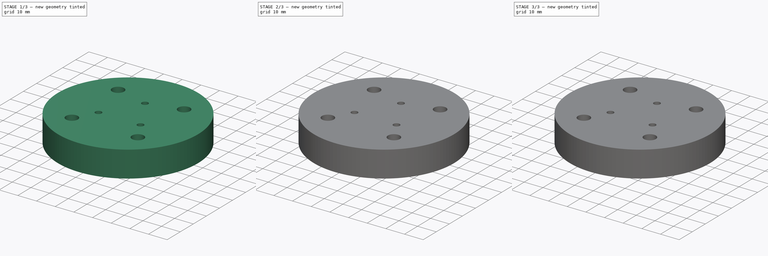
[diagram: build sequence overview — one tinted view per stage of 3, left to right]
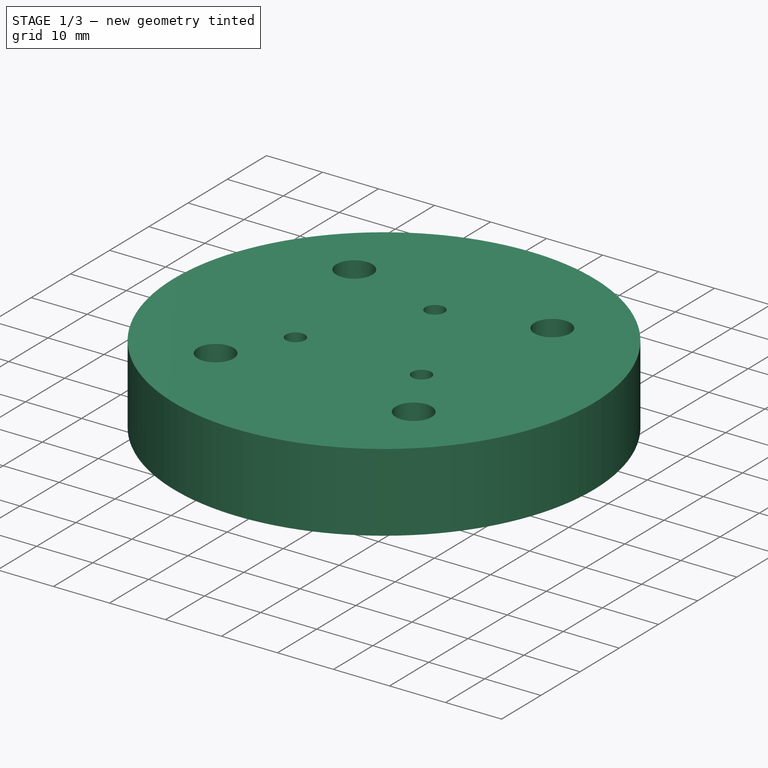
[diagram: stage 1 of 3 — iso view after this stage's code; geometry added in this stage tinted green]
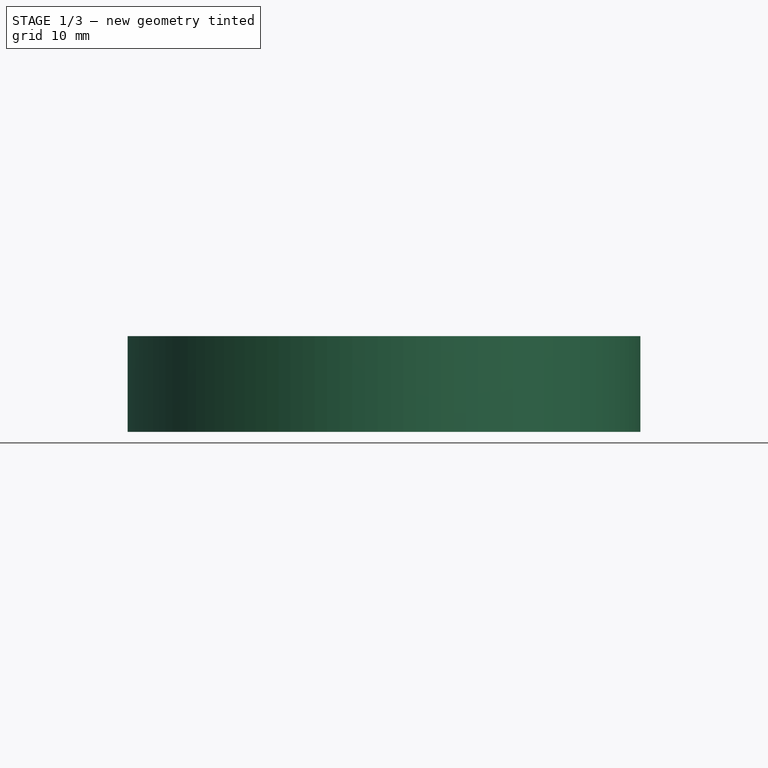
[diagram: stage 1 of 3 — front view after this stage's code; geometry added in this stage tinted green]
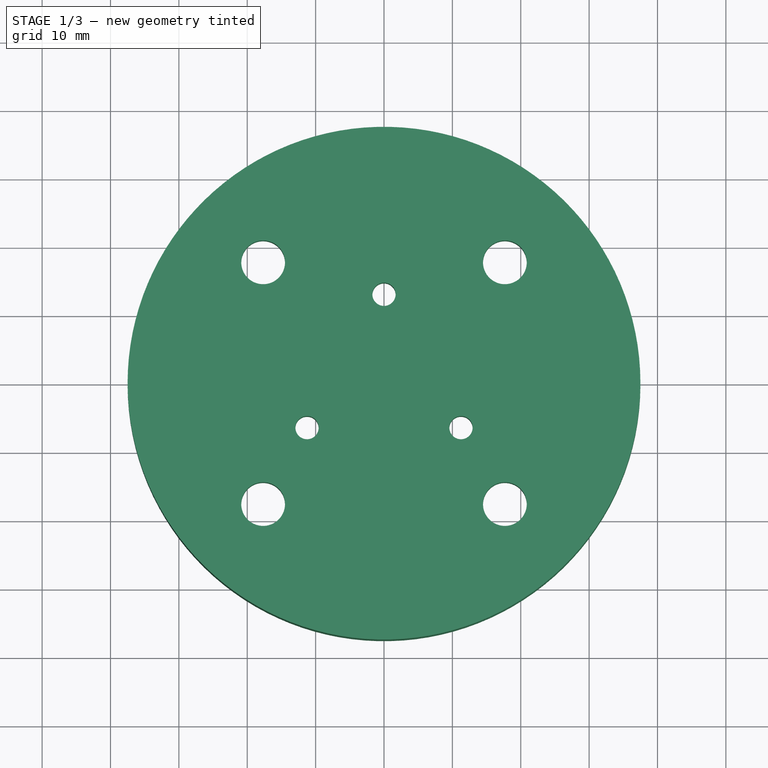
[diagram: stage 1 of 3 — top view after this stage's code; geometry added in this stage tinted green]
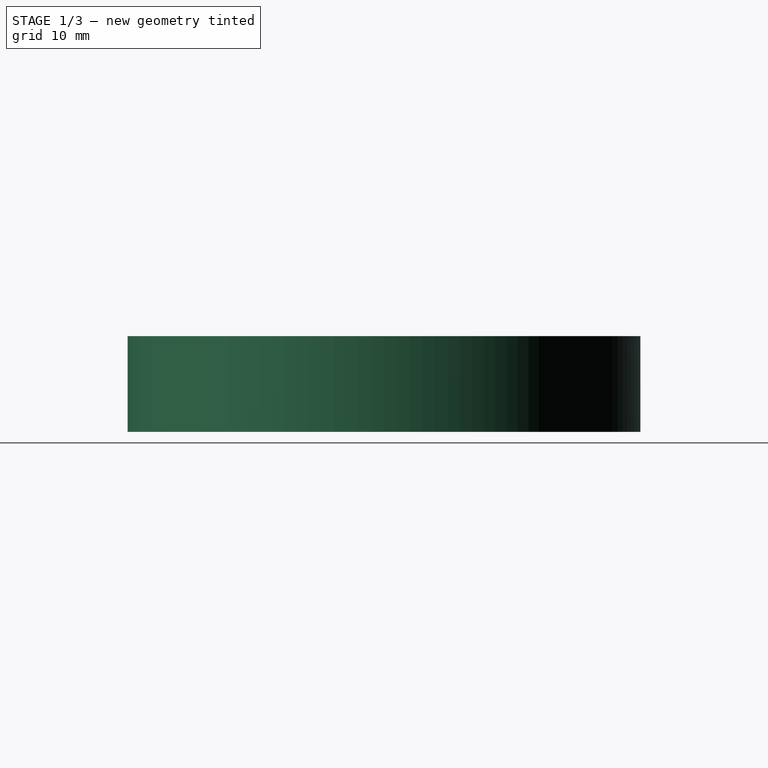
[diagram: stage 1 of 3 — right view after this stage's code; geometry added in this stage tinted green]
FCSTD DOCUMENT  (FreeCAD 0.15R4671 (Git))
Label: GripperAdaptor
License: All rights reserved
LicenseURL: http://en.wikipedia.org/wiki/All_rights_reserved
objects: Sketcher::SketchObject×5, PartDesign::Pad×4, PartDesign::Chamfer×3, PartDesign::Pocket×1
note: 18 computed .brp shape members not serialized (recipe doc carries the construction recipe); baked Part::Feature solids carry a one-line shape summary decoded from their .brp

FEATURE [Sketcher::SketchObject] Sketch
  sketch-geometry (18):
    g0: Circle CenterX=0 CenterY=0 CenterZ=0 NormalX=0 NormalY=0 NormalZ=1 Radius=37.5
    g1: Circle CenterX=-11.2583 CenterY=-6.5 CenterZ=0 NormalX=0 NormalY=0 NormalZ=1 Radius=1.7
    g2: Circle CenterX=11.2583 CenterY=-6.5 CenterZ=0 NormalX=0 NormalY=0 NormalZ=1 Radius=1.7
    g3: Circle CenterX=0 CenterY=13 CenterZ=0 NormalX=0 NormalY=0 NormalZ=1 Radius=1.7
    g4: LineSegment [constr] StartX=0 StartY=0 StartZ=0 EndX=0 EndY=37.5 EndZ=0
    g5: LineSegment [constr] StartX=0 StartY=0 StartZ=0 EndX=-32.476 EndY=-18.75 EndZ=0
    g6: LineSegment [constr] StartX=0 StartY=0 StartZ=0 EndX=32.476 EndY=-18.75 EndZ=0
    g7: Circle [constr] CenterX=0 CenterY=0 CenterZ=0 NormalX=0 NormalY=0 NormalZ=1 Radius=13
    g8: LineSegment [constr] StartX=-17.6777 StartY=17.6777 StartZ=0 EndX=17.6777 EndY=17.6777 EndZ=0
    g9: LineSegment [constr] StartX=17.6777 StartY=17.6777 StartZ=0 EndX=17.6777 EndY=-17.6777 EndZ=0
    g10: LineSegment [constr] StartX=17.6777 StartY=-17.6777 StartZ=0 EndX=-17.6777 EndY=-17.6777 EndZ=0
    g11: LineSegment [constr] StartX=-17.6777 StartY=-17.6777 StartZ=0 EndX=-17.6777 EndY=17.6777 EndZ=0
    g12: Circle CenterX=-17.6777 CenterY=17.6777 CenterZ=0 NormalX=0 NormalY=0 NormalZ=1 Radius=3.2
    g13: Circle CenterX=17.6777 CenterY=17.6777 CenterZ=0 NormalX=0 NormalY=0 NormalZ=1 Radius=3.2
    g14: Circle CenterX=-17.6777 CenterY=-17.6777 CenterZ=0 NormalX=0 NormalY=0 NormalZ=1 Radius=3.2
    g15: Circle CenterX=17.6777 CenterY=-17.6777 CenterZ=0 NormalX=0 NormalY=0 NormalZ=1 Radius=3.2
    g16: Circle [constr] CenterX=0 CenterY=0 CenterZ=0 NormalX=0 NormalY=0 NormalZ=1 Radius=25
    g17: Circle [constr] CenterX=0 CenterY=0 CenterZ=0 NormalX=0 NormalY=0 NormalZ=1 Radius=19
  constraints (46):
    c: Coincident(g0,g-1)
    c: Radius(g0) = 37.5
    c: Coincident(g4,g-1)
    c: PointOnObject(g4,g0)
    c: Vertical(g4)
    c: Coincident(g5,g-1)
    c: PointOnObject(g5,g0)
    c: Coincident(g6,g-1)
    c: Angle(g6,g4) = 2.0944
    c: Angle(g5,g6) = 2.0944
    c: PointOnObject(g1,g5)
    c: PointOnObject(g2,g6)
    c: PointOnObject(g3,g4)
    c: Coincident(g7,g-1)
    c: PointOnObject(g2,g7)
    c: PointOnObject(g1,g7)
    c: PointOnObject(g3,g7)
    c: Radius(g2) = 1.7
    c: Equal(g2,g1)
    c: Equal(g2,g3)
    c: Coincident(g8,g9)
    c: Coincident(g9,g10)
    c: Coincident(g10,g11)
    c: Coincident(g11,g8)
    c: Horizontal(g8)
    c: Horizontal(g10)
    c: Vertical(g9)
    c: Vertical(g11)
    c: Coincident(g12,g8)
    c: Coincident(g13,g8)
    c: Coincident(g14,g10)
    c: Coincident(g15,g9)
    c: Radius(g14) = 3.2
    c: Equal(g14,g12)
    c: Equal(g14,g13)
    c: Equal(g14,g15)
    c: Equal(g9,g8)
    c: Coincident(g16,g-1)
    c: PointOnObject(g8,g16)
    c: Radius(g16) = 25
    c: PointOnObject(g10,g16)
    c: PointOnObject(g8,g16)
    c: Radius(g7) = 13
    c: PointOnObject(g6,g0)
    c: Coincident(g17,g-1)
    c: Radius(g17) = 19
FEATURE [PartDesign::Pad] Pad
  Length = 8
  Length2 = 100
  Sketch = -> Sketch
  Type = 0
FEATURE [Sketcher::SketchObject] Sketch001
  Placement = pos=(0,0,0) rot=(1,0,0;3.14159rad)
  Support = -> Pad [Face9]
  sketch-geometry (2):
    g0: Circle CenterX=0 CenterY=0 CenterZ=0 NormalX=0 NormalY=0 NormalZ=1 Radius=37.5
    g1: Circle CenterX=0 CenterY=0 CenterZ=0 NormalX=0 NormalY=0 NormalZ=1 Radius=31.8
  constraints (4):
    c: Coincident(g0,g-1)
    c: Radius(g0) = 37.5
    c: Coincident(g1,g-1)
    c: Radius(g1) = 31.8
FEATURE [PartDesign::Pad] Pad001
  Length = 6
  Length2 = 100
  Sketch = -> Sketch001
  Type = 0
FEATURE [Sketcher::SketchObject] Sketch002
  Placement = pos=(0,0,0) rot=(1,0,0;3.14159rad)
  Support = -> Pad001 [Face9]
  sketch-geometry (2):
    g0: Circle [constr] CenterX=0 CenterY=0 CenterZ=0 NormalX=0 NormalY=0 NormalZ=1 Radius=25
    g1: Circle CenterX=0 CenterY=25 CenterZ=0 NormalX=0 NormalY=0 NormalZ=1 Radius=2.5
  constraints (5):
    c: Coincident(g0,g-1)
    c: Radius(g0) = 25
    c: PointOnObject(g1,g-2)
    c: PointOnObject(g1,g0)
    c: Radius(g1) = 2.5
FEATURE [PartDesign::Pad] Pad002
  Length = 5
  Length2 = 100
  Sketch = -> Sketch002
  Type = 0
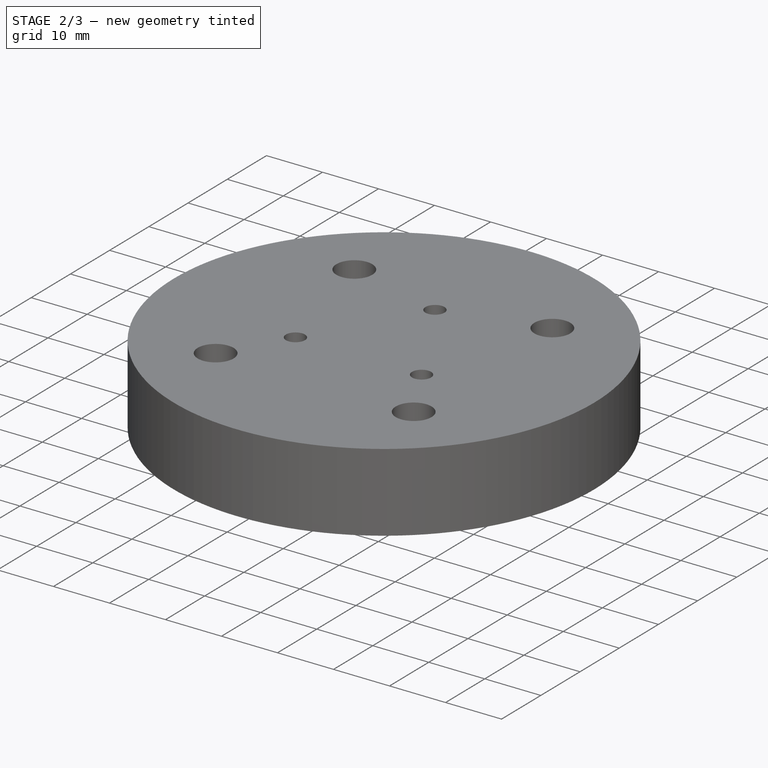
[diagram: stage 2 of 3 — iso view after this stage's code; geometry added in this stage tinted green]
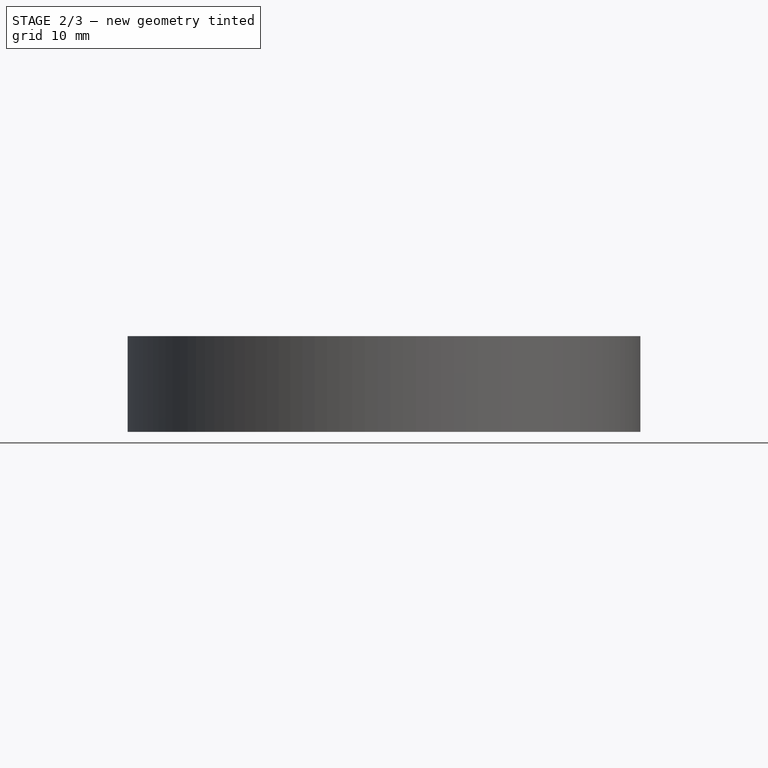
[diagram: stage 2 of 3 — front view after this stage's code; geometry added in this stage tinted green]
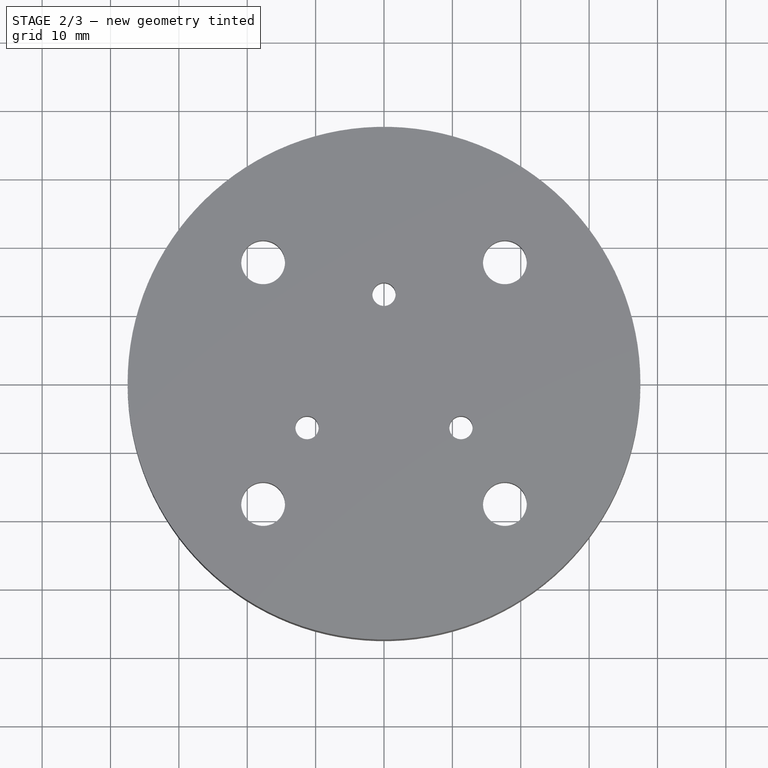
[diagram: stage 2 of 3 — top view after this stage's code; geometry added in this stage tinted green]
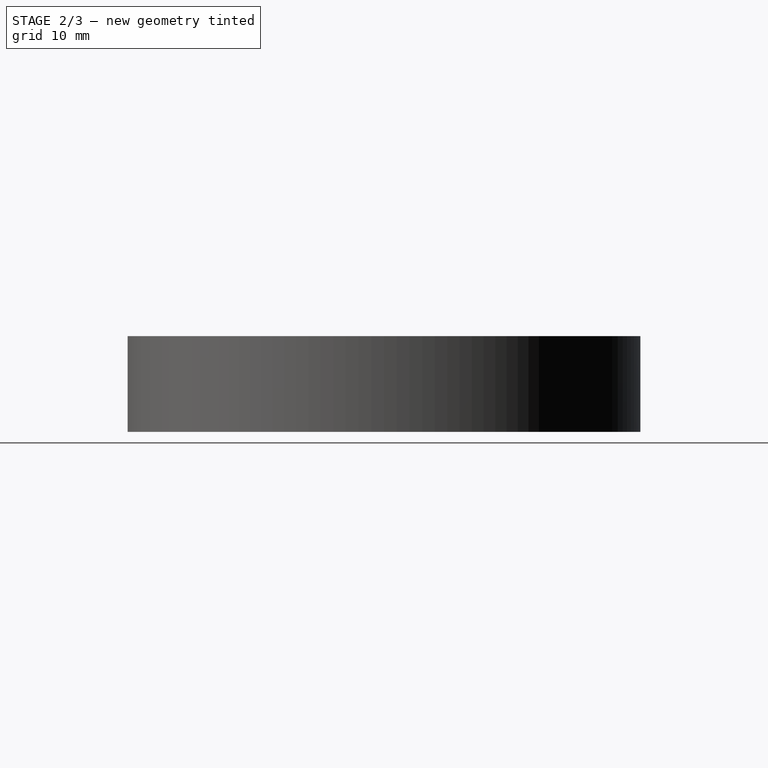
[diagram: stage 2 of 3 — right view after this stage's code; geometry added in this stage tinted green]
FEATURE [Sketcher::SketchObject] Sketch003
  Placement = pos=(0,0,0) rot=(1,0,0;3.14159rad)
  Support = -> Pad002 [Face11]
  sketch-geometry (1):
    g0: Circle CenterX=0 CenterY=0 CenterZ=0 NormalX=0 NormalY=0 NormalZ=1 Radius=15.6
  constraints (2):
    c: Coincident(g0,g-1)
    c: Radius(g0) = 15.6
FEATURE [PartDesign::Pad] Pad003
  Length = 6
  Length2 = 100
  Sketch = -> Sketch003
  Type = 0
FEATURE [Sketcher::SketchObject] Sketch004
  Placement = pos=(0,0,-6) rot=(1,0,0;3.14159rad)
  Support = -> Pad003 [Face18]
  sketch-geometry (7):
    g0: Circle [constr] CenterX=0 CenterY=0 CenterZ=0 NormalX=0 NormalY=0 NormalZ=1 Radius=13
    g1: LineSegment [constr] StartX=0 StartY=0 StartZ=0 EndX=-11.2583 EndY=6.5 EndZ=0
    g2: LineSegment [constr] StartX=0 StartY=0 StartZ=0 EndX=11.2583 EndY=6.5 EndZ=0
    g3: LineSegment [constr] StartX=0 StartY=0 StartZ=0 EndX=0 EndY=-13 EndZ=0
    g4: Circle CenterX=-11.2583 CenterY=6.5 CenterZ=0 NormalX=0 NormalY=0 NormalZ=1 Radius=4
    g5: Circle CenterX=11.2583 CenterY=6.5 CenterZ=0 NormalX=0 NormalY=0 NormalZ=1 Radius=4
    g6: Circle CenterX=0 CenterY=-13 CenterZ=0 NormalX=0 NormalY=0 NormalZ=1 Radius=4
  constraints (17):
    c: Coincident(g0,g-1)
    c: Radius(g0) = 13
    c: Coincident(g1,g-1)
    c: PointOnObject(g1,g0)
    c: Coincident(g2,g-1)
    c: PointOnObject(g2,g0)
    c: Coincident(g3,g-1)
    c: PointOnObject(g3,g0)
    c: Vertical(g3)
    c: Angle(g3,g2) = 2.0944
    c: Angle(g1,g3) = 2.0944
    c: Coincident(g5,g2)
    c: Coincident(g6,g3)
    c: Radius(g6) = 4
    c: Equal(g6,g5)
    c: Equal(g6,g4)
    c: Coincident(g4,g1)
FEATURE [PartDesign::Pocket] Pocket
  Length = 6
  Sketch = -> Sketch004
  Type = 0
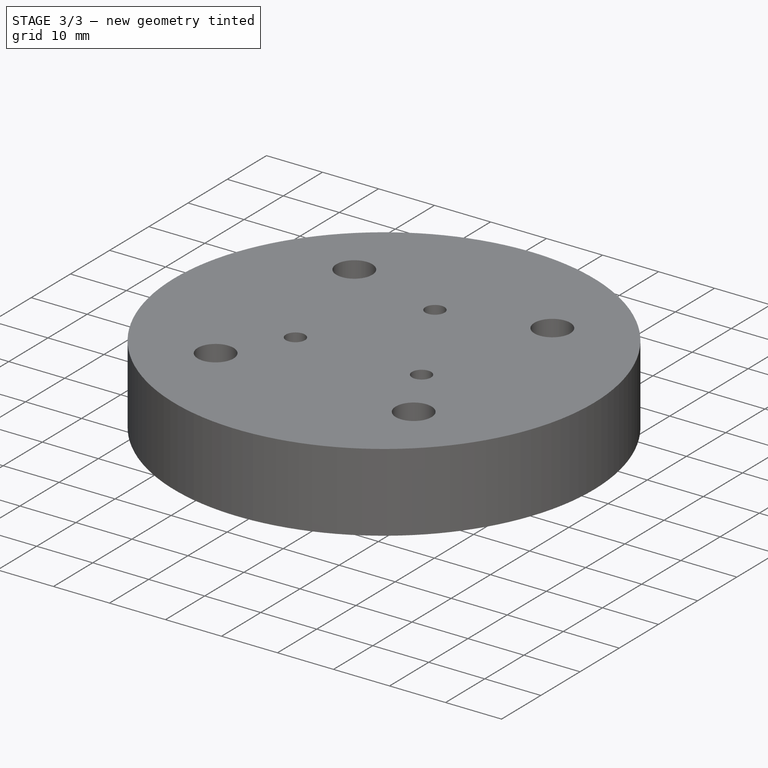
[diagram: stage 3 of 3 — iso view after this stage's code; geometry added in this stage tinted green]
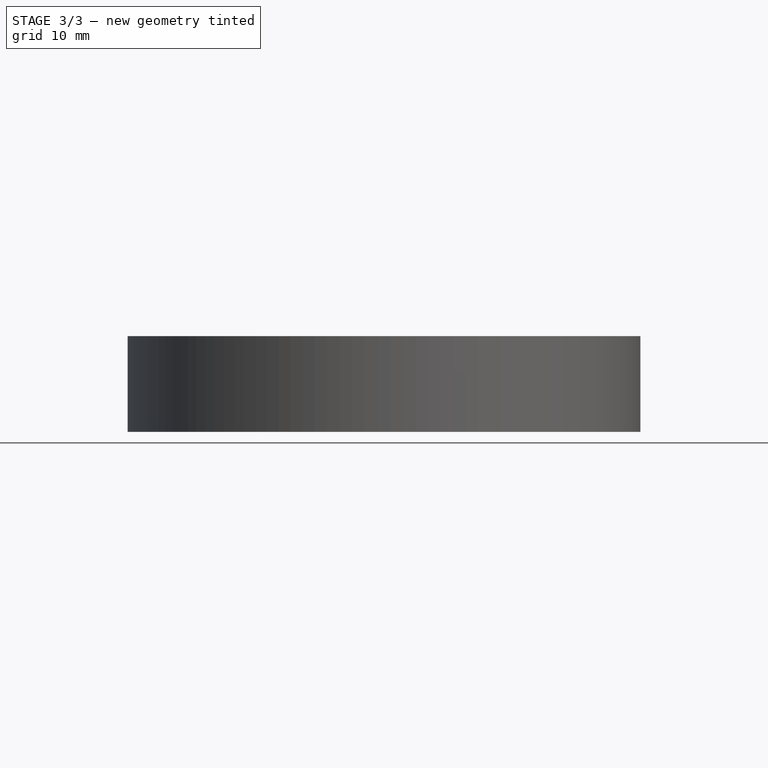
[diagram: stage 3 of 3 — front view after this stage's code; geometry added in this stage tinted green]
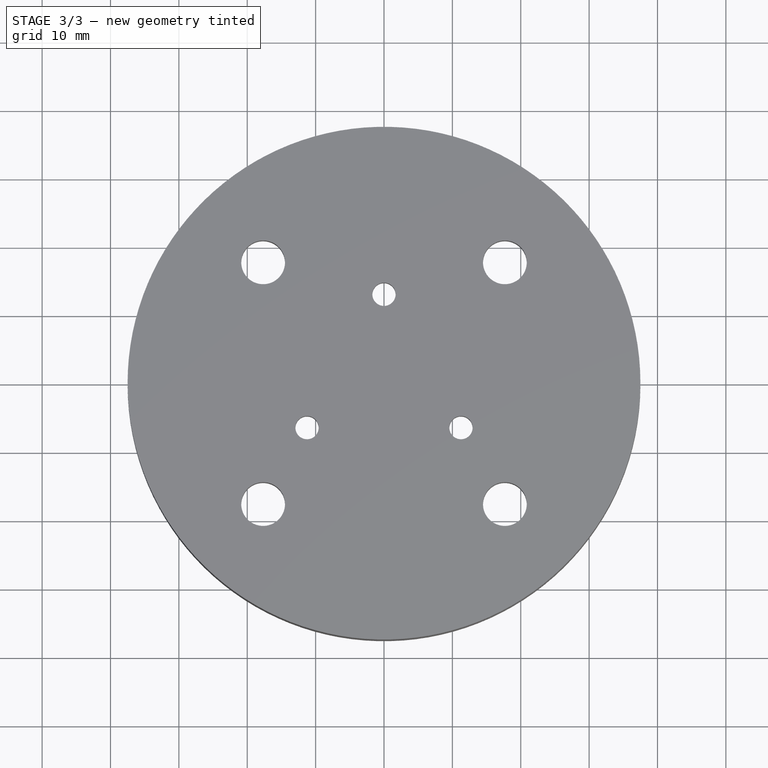
[diagram: stage 3 of 3 — top view after this stage's code; geometry added in this stage tinted green]
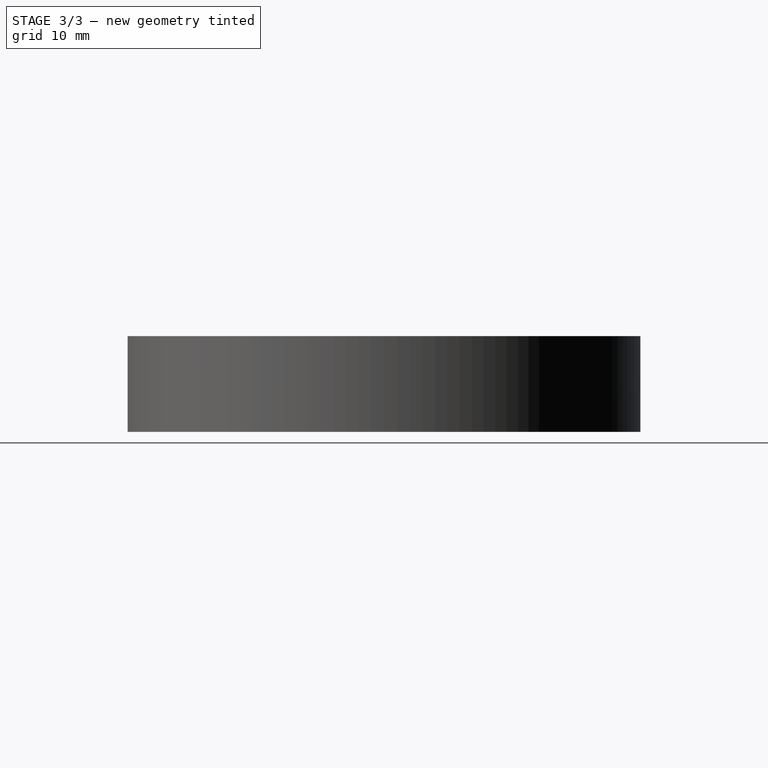
[diagram: stage 3 of 3 — right view after this stage's code; geometry added in this stage tinted green]
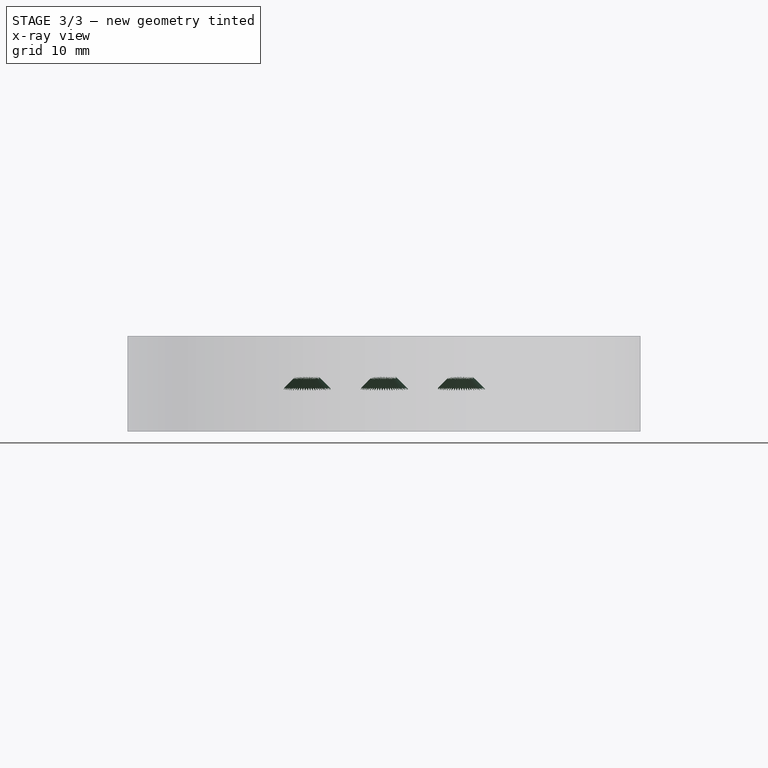
[diagram: stage 3 of 3 — x-ray composite at the front view; earlier geometry ghosted, this stage's added geometry solid]
FEATURE [PartDesign::Chamfer] Chamfer
  Base = -> Pocket [Edge20]
  Size = 2.1
FEATURE [PartDesign::Chamfer] Chamfer001
  Base = -> Chamfer [Edge28]
  Size = 2.1
FEATURE [PartDesign::Chamfer] Chamfer002
  Base = -> Chamfer001 [Edge18]
  Size = 2.1
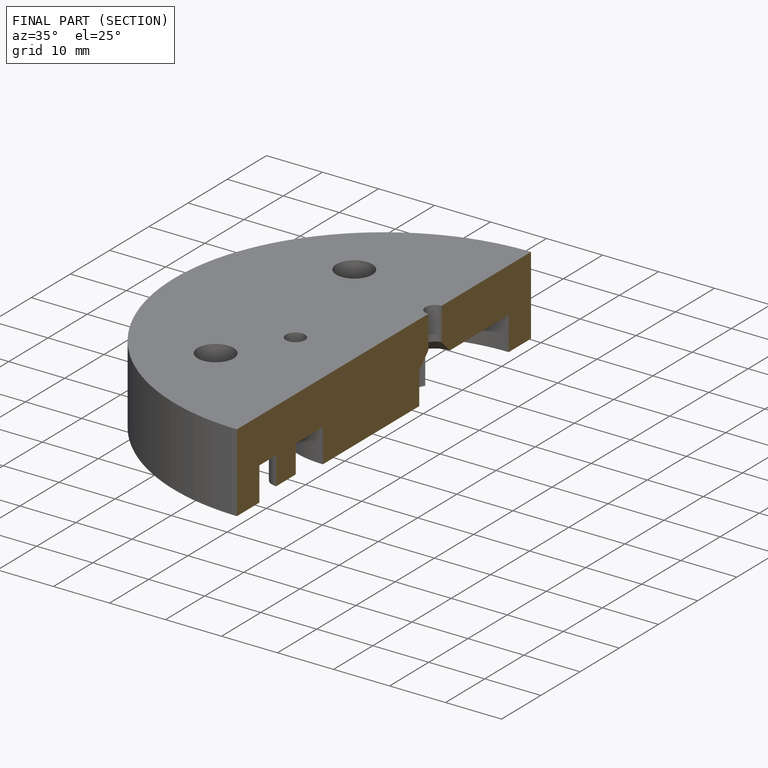
[diagram: finished part — half-section view (interior)]
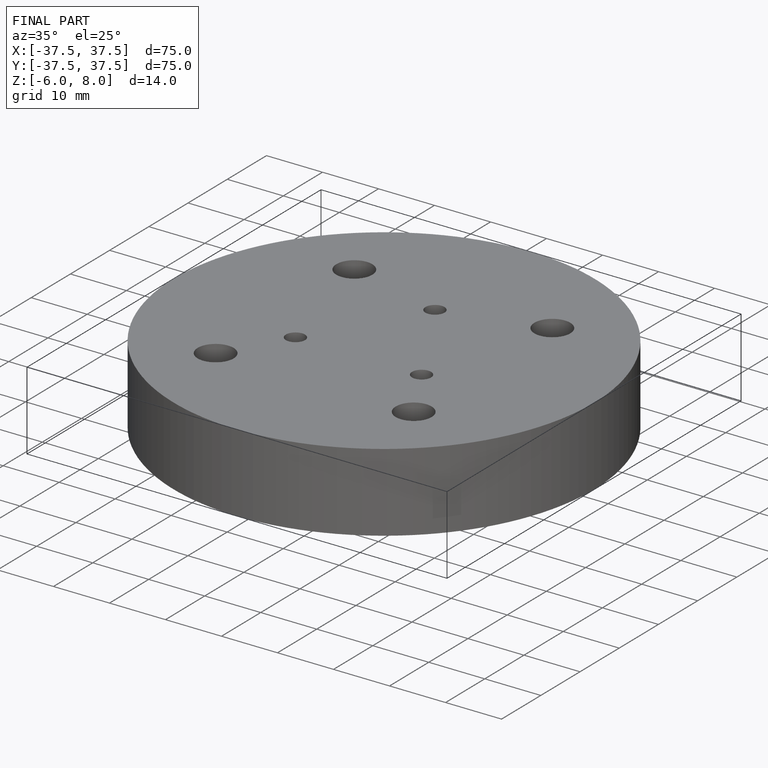
[diagram: finished part — iso view with bounding-box wireframe]
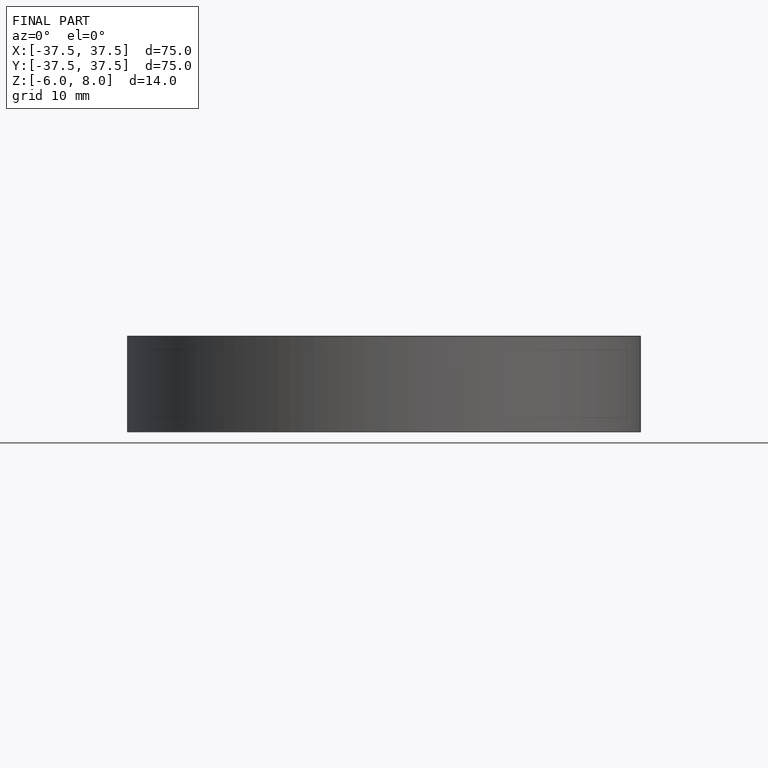
[diagram: finished part — front view with bounding-box wireframe]
